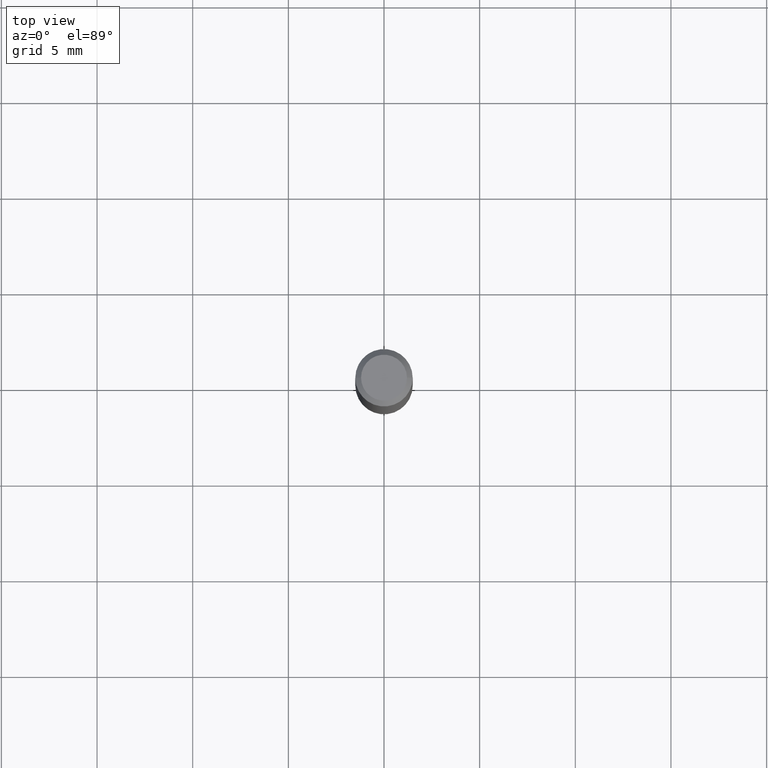
[diagram: clean part render]
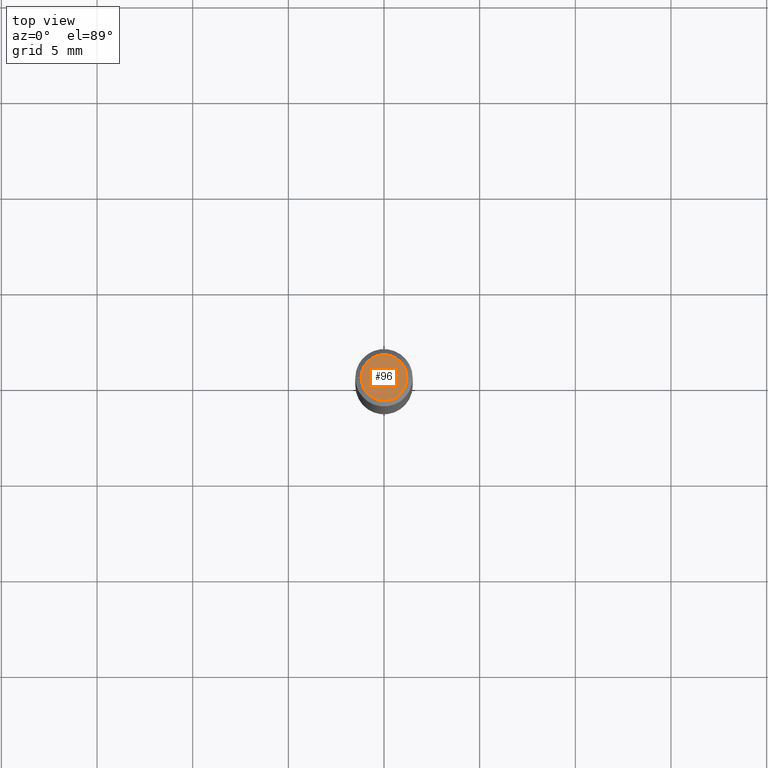
[diagram: same view with one face highlighted and labeled with its STEP entity id]
A machine part, top view. The second image highlights one B-rep face of the part: STEP entity #96.
In plain terms, the highlighted planar face has unit normal (0, -0, -1).
Its self-contained STEP definition (entity closure, byte-faithful):
#6 = AXIS2_PLACEMENT_3D ( 'NONE', #239, #388, #199 ) ;
#84 = AXIS2_PLACEMENT_3D ( 'NONE', #425, #201, #89 ) ;
#88 = EDGE_CURVE ( 'NONE', #382, #367, #346, .T. ) ;
#89 = DIRECTION ( 'NONE',  ( -1.000000000000000000, 6.982962677686265922E-15, -4.876176775795935793E-29 ) ) ;
#92 = CIRCLE ( 'NONE', #277, 0.04724000000000000421 ) ;
#96 = ADVANCED_FACE ( 'NONE', ( #351 ), #127, .F. ) ;
#118 = DIRECTION ( 'NONE',  ( -2.445468806185136597E-29, 3.491481338843145583E-15, 1.000000000000000000 ) ) ;
#127 = PLANE ( 'NONE',  #84 ) ;
#160 = EDGE_LOOP ( 'NONE', ( #338, #164 ) ) ;
#164 = ORIENTED_EDGE ( 'NONE', *, *, #316, .T. ) ;
#199 = DIRECTION ( 'NONE',  ( 1.000000000000000000, -6.982962677686266711E-15, 4.876185090822587894E-29 ) ) ;
#201 = DIRECTION ( 'NONE',  ( 2.438088387897960049E-29, -3.491481338843145188E-15, -1.000000000000000000 ) ) ;
#220 = CARTESIAN_POINT ( 'NONE',  ( -0.04724000000000000421, 3.504923541997677355E-16, -3.380025165670481712E-19 ) ) ;
#226 = CARTESIAN_POINT ( 'NONE',  ( 8.265746106709734507E-48, -1.180129479067563789E-33, -3.380025165646692144E-19 ) ) ;
#239 = CARTESIAN_POINT ( 'NONE',  ( 8.265746106709734507E-48, -1.180129479067563789E-33, -3.380025165646692144E-19 ) ) ;
#263 = CARTESIAN_POINT ( 'NONE',  ( 0.04724000000000000421, -3.852183633974369345E-16, -3.380025165621689721E-19 ) ) ;
#277 = AXIS2_PLACEMENT_3D ( 'NONE', #226, #118, #478 ) ;
#316 = EDGE_CURVE ( 'NONE', #367, #382, #92, .T. ) ;
#338 = ORIENTED_EDGE ( 'NONE', *, *, #88, .T. ) ;
#346 = CIRCLE ( 'NONE', #6, 0.04724000000000000421 ) ;
#351 = FACE_OUTER_BOUND ( 'NONE', #160, .T. ) ;
#367 = VERTEX_POINT ( 'NONE', #263 ) ;
#382 = VERTEX_POINT ( 'NONE', #220 ) ;
#388 = DIRECTION ( 'NONE',  ( -2.445468806185136597E-29, 3.491481338843145583E-15, 1.000000000000000000 ) ) ;
#425 = CARTESIAN_POINT ( 'NONE',  ( 4.132873053354867254E-48, -5.900647395337818946E-34, -1.690012582823346072E-19 ) ) ;
#478 = DIRECTION ( 'NONE',  ( 1.000000000000000000, -6.982962677686266711E-15, 4.876185090822587894E-29 ) ) ;